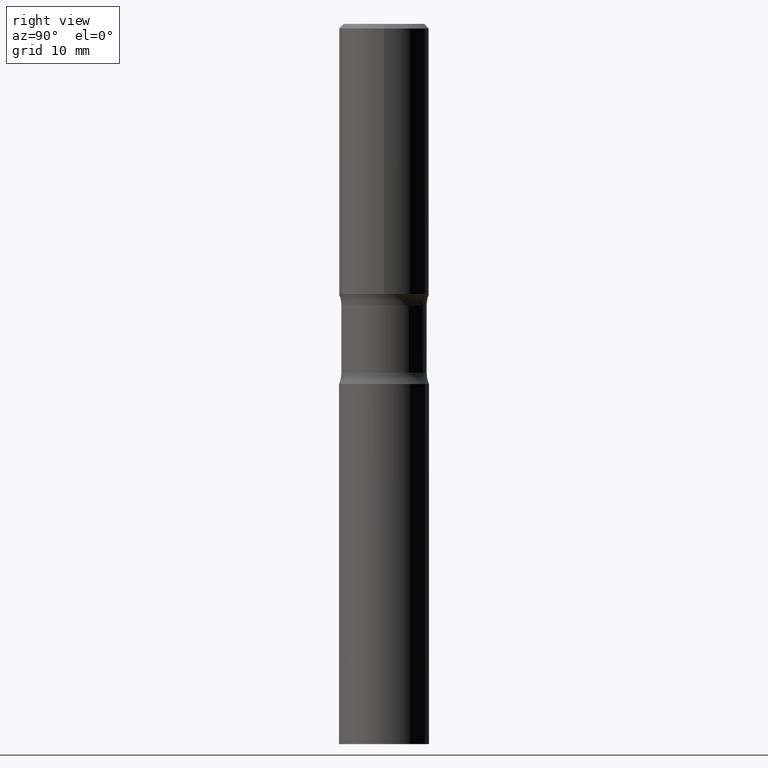
[diagram: clean part render]
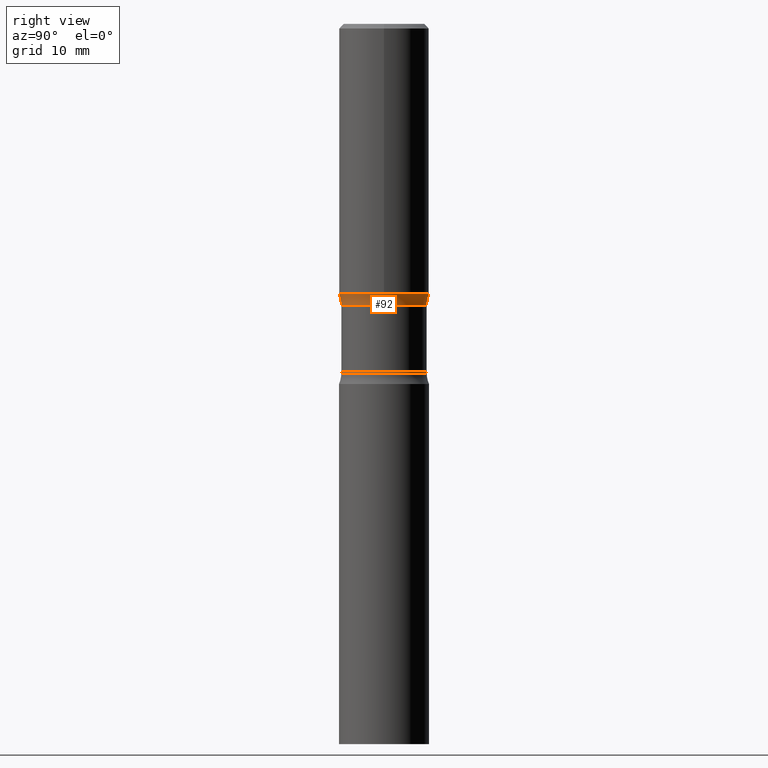
[diagram: same view with one face highlighted and labeled with its STEP entity id]
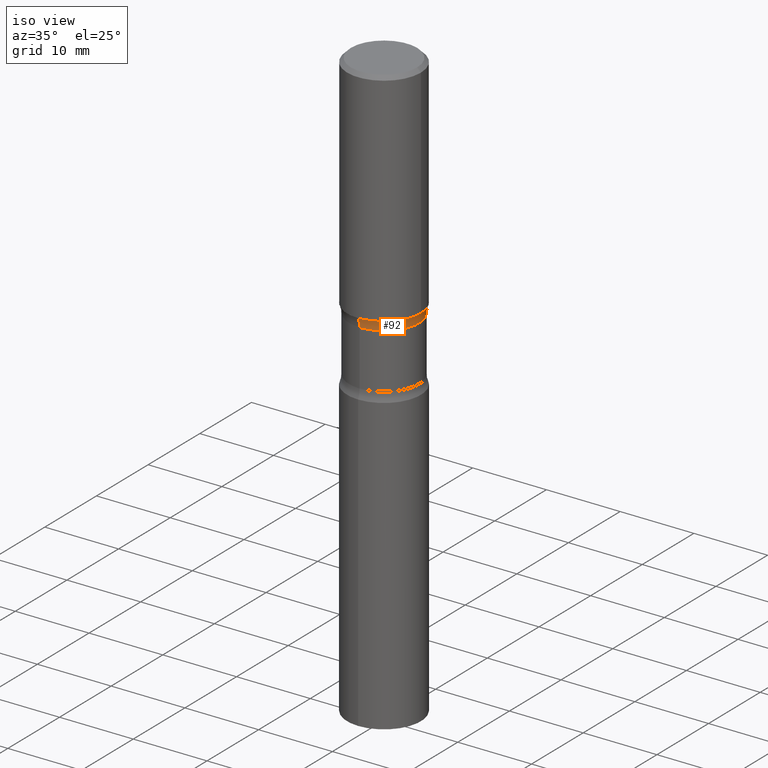
[diagram: same view with one face highlighted and labeled with its STEP entity id]
A machine part, right view. The second image highlights one B-rep face of the part: STEP entity #92.
A second angle (iso view) of the same face is appended — the face is thin or edge-on in the first view.
In plain terms, the highlighted toroidal blend (fillet) surface has major radius 7.9121 mm and minor (blend) radius 3.175 mm.
Its self-contained STEP definition (entity closure, byte-faithful):
#28 = CARTESIAN_POINT ( 'NONE',  ( 2.998087953510655377E-29, -4.314929469621585971E-15, -1.230903388438940427 ) ) ;
#30 = DIRECTION ( 'NONE',  ( 6.982962677686265922E-15, 1.000000000000000000, -2.929595703661408850E-15 ) ) ;
#36 = CARTESIAN_POINT ( 'NONE',  ( 3.010135839855015201E-29, -4.297676210653356635E-15, -1.230903388438940427 ) ) ;
#53 = AXIS2_PLACEMENT_3D ( 'NONE', #36, #303, #424 ) ;
#80 = CARTESIAN_POINT ( 'NONE',  ( 2.874816042492756057E-29, -4.143160278779300076E-15, -1.181099999999999817 ) ) ;
#88 = DIRECTION ( 'NONE',  ( -1.000000000000000000, 6.982962677686265922E-15, -4.883557194083112340E-29 ) ) ;
#92 = ADVANCED_FACE ( 'NONE', ( #342 ), #507, .F. ) ;
#99 = CIRCLE ( 'NONE', #228, 0.1968500000000000250 ) ;
#113 = ORIENTED_EDGE ( 'NONE', *, *, #386, .T. ) ;
#120 = CARTESIAN_POINT ( 'NONE',  ( -1.314985953722828706E-15, -0.1865000000000042735, -1.230903388438939983 ) ) ;
#145 = VERTEX_POINT ( 'NONE', #229 ) ;
#146 = CIRCLE ( 'NONE', #175, 0.1250000000000000278 ) ;
#155 = AXIS2_PLACEMENT_3D ( 'NONE', #28, #301, #30 ) ;
#171 = EDGE_CURVE ( 'NONE', #414, #191, #465, .T. ) ;
#172 = CARTESIAN_POINT ( 'NONE',  ( -1.350489030861297227E-15, -0.1968500000000041328, -1.181099999999999151 ) ) ;
#175 = AXIS2_PLACEMENT_3D ( 'NONE', #439, #88, #275 ) ;
#183 = EDGE_CURVE ( 'NONE', #191, #335, #341, .T. ) ;
#191 = VERTEX_POINT ( 'NONE', #120 ) ;
#220 = EDGE_LOOP ( 'NONE', ( #263, #455, #113, #224 ) ) ;
#224 = ORIENTED_EDGE ( 'NONE', *, *, #321, .T. ) ;
#228 = AXIS2_PLACEMENT_3D ( 'NONE', #80, #358, #350 ) ;
#229 = CARTESIAN_POINT ( 'NONE',  ( 1.374596203102570007E-15, 0.1968499999999958894, -1.181100000000000483 ) ) ;
#263 = ORIENTED_EDGE ( 'NONE', *, *, #183, .F. ) ;
#270 = CARTESIAN_POINT ( 'NONE',  ( -2.137045126305801827E-15, -0.3115000000000043290, -1.230903388438939317 ) ) ;
#275 = DIRECTION ( 'NONE',  ( -6.982962677686265133E-15, -1.000000000000000000, 0.000000000000000000 ) ) ;
#300 = AXIS2_PLACEMENT_3D ( 'NONE', #270, #466, #461 ) ;
#301 = DIRECTION ( 'NONE',  ( 2.475171165693508831E-29, -3.448945869473840543E-15, -1.000000000000000000 ) ) ;
#303 = DIRECTION ( 'NONE',  ( 2.475171165693508831E-29, -3.448945869473840543E-15, -1.000000000000000000 ) ) ;
#321 = EDGE_CURVE ( 'NONE', #145, #335, #99, .T. ) ;
#335 = VERTEX_POINT ( 'NONE', #172 ) ;
#341 = CIRCLE ( 'NONE', #300, 0.1250000000000000278 ) ;
#342 = FACE_OUTER_BOUND ( 'NONE', #220, .T. ) ;
#350 = DIRECTION ( 'NONE',  ( 6.982962677686265133E-15, 1.000000000000000000, -3.469453890861395573E-15 ) ) ;
#358 = DIRECTION ( 'NONE',  ( 2.475171165693508831E-29, -3.448945869473840543E-15, -1.000000000000000000 ) ) ;
#367 = CARTESIAN_POINT ( 'NONE',  ( 1.302322539388518576E-15, 0.1864999999999956692, -1.230903388438941093 ) ) ;
#386 = EDGE_CURVE ( 'NONE', #414, #145, #146, .T. ) ;
#414 = VERTEX_POINT ( 'NONE', #367 ) ;
#424 = DIRECTION ( 'NONE',  ( 6.982962677686265133E-15, 1.000000000000000000, -3.448945869473840543E-15 ) ) ;
#439 = CARTESIAN_POINT ( 'NONE',  ( 2.175192874099301915E-15, 0.3114999999999957248, -1.230903388438941537 ) ) ;
#455 = ORIENTED_EDGE ( 'NONE', *, *, #171, .F. ) ;
#461 = DIRECTION ( 'NONE',  ( 6.860497997771532351E-15, 1.000000000000000000, 0.000000000000000000 ) ) ;
#465 = CIRCLE ( 'NONE', #155, 0.1864999999999999714 ) ;
#466 = DIRECTION ( 'NONE',  ( 1.000000000000000000, -6.860497997771530774E-15, 4.841319788888276624E-29 ) ) ;
#507 = TOROIDAL_SURFACE ( 'NONE', #53, 0.3114999999999999991, 0.1250000000000000278 ) ;